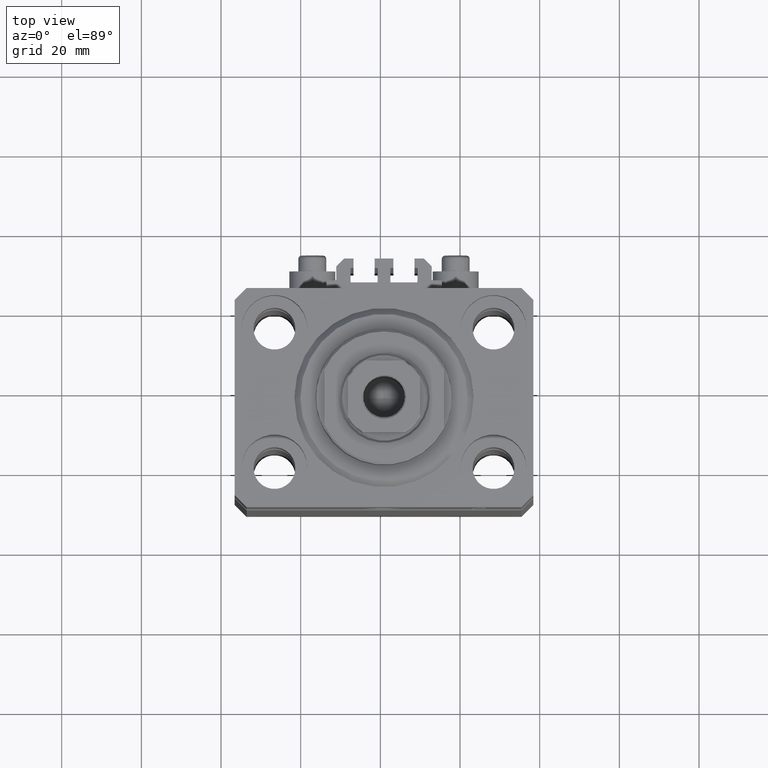
[diagram: clean part render]
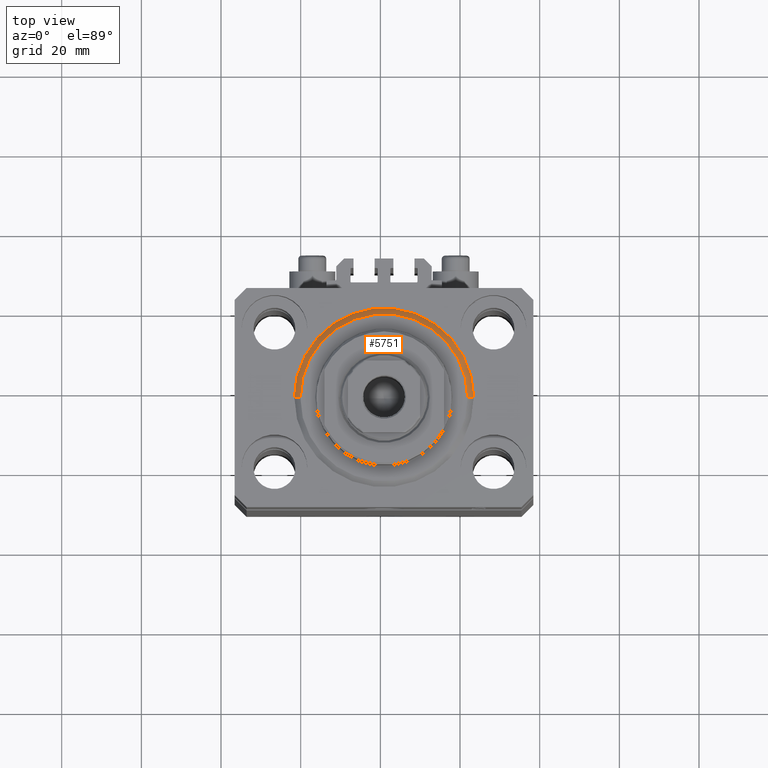
[diagram: same view with one face highlighted and labeled with its STEP entity id]
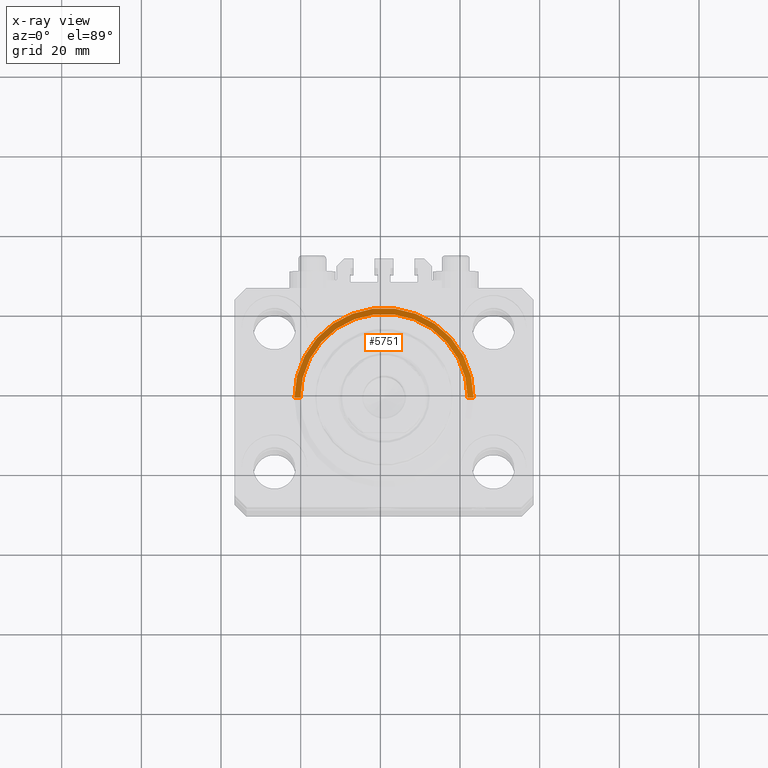
[diagram: x-ray of the same camera — body ghosted, the highlighted face saturated]
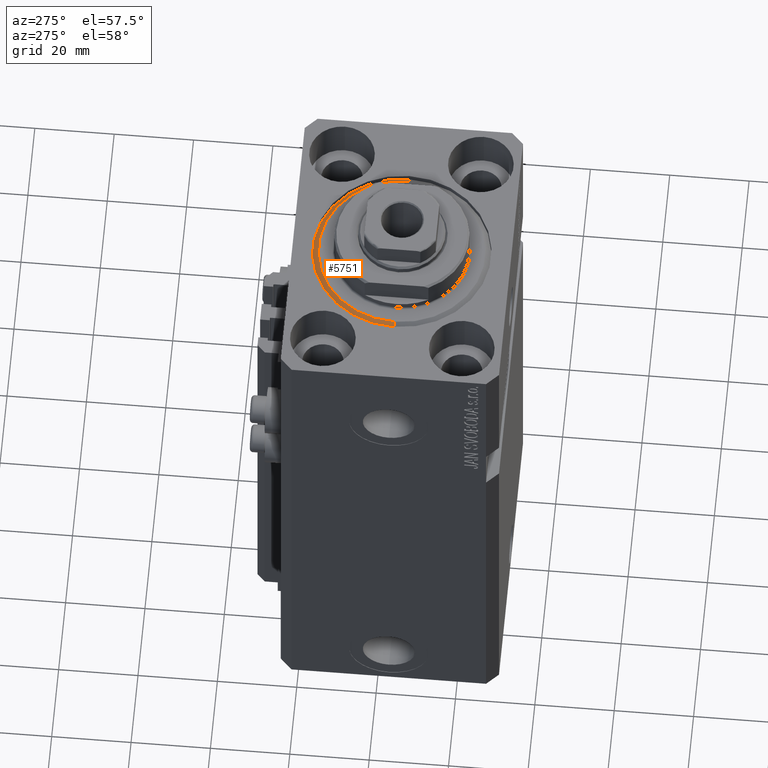
[diagram: same view with one face highlighted and labeled with its STEP entity id]
A machine part, top view. The second image highlights one B-rep face of the part: STEP entity #5751.
The next image is the same camera in x-ray: the body ghosted, the highlighted face saturated — about 0% of this face is hidden behind the body in this view.
A second angle (auxiliary view) of the same face is appended — the face is thin or edge-on in the first view.
In plain terms, the highlighted conical surface has half-angle 45 deg.
Its self-contained STEP definition (entity closure, byte-faithful):
#1240 = CARTESIAN_POINT ( 'NONE',  ( -22.50000000000000355, 2.755455298081545172E-15, 1.500000000000039524 ) ) ;
#2021 = VERTEX_POINT ( 'NONE', #37852 ) ;
#5600 = DIRECTION ( 'NONE',  ( -0.000000000000000000, -0.000000000000000000, 1.000000000000000000 ) ) ;
#5751 = ADVANCED_FACE ( 'NONE', ( #23813 ), #14753, .T. ) ;
#10174 = AXIS2_PLACEMENT_3D ( 'NONE', #38456, #5600, #34835 ) ;
#11089 = EDGE_CURVE ( 'NONE', #11687, #47380, #46181, .T. ) ;
#11687 = VERTEX_POINT ( 'NONE', #43100 ) ;
#12198 = CARTESIAN_POINT ( 'NONE',  ( -22.50000000000000355, 0.000000000000000000, 1.500000000000039524 ) ) ;
#12536 = AXIS2_PLACEMENT_3D ( 'NONE', #30068, #15673, #44206 ) ;
#12825 = DIRECTION ( 'NONE',  ( -0.000000000000000000, -0.000000000000000000, -1.000000000000000000 ) ) ;
#14753 = CONICAL_SURFACE ( 'NONE', #10174, 22.50000000000000355, 0.7853981633974517207 ) ;
#15033 = EDGE_LOOP ( 'NONE', ( #33092, #35826, #44910, #47071 ) ) ;
#15130 = VECTOR ( 'NONE', #42238, 1000.000000000000114 ) ;
#15604 = DIRECTION ( 'NONE',  ( -0.7071067811865500152, 8.659560562354962440E-17, 0.7071067811865451302 ) ) ;
#15673 = DIRECTION ( 'NONE',  ( -0.000000000000000000, -0.000000000000000000, 1.000000000000000000 ) ) ;
#18967 = VECTOR ( 'NONE', #15604, 1000.000000000000114 ) ;
#19203 = LINE ( 'NONE', #1240, #18967 ) ;
#19893 = EDGE_CURVE ( 'NONE', #21279, #2021, #29626, .T. ) ;
#21279 = VERTEX_POINT ( 'NONE', #30214 ) ;
#23813 = FACE_OUTER_BOUND ( 'NONE', #15033, .T. ) ;
#27130 = CARTESIAN_POINT ( 'NONE',  ( 22.50000000000000355, 0.000000000000000000, 1.500000000000039524 ) ) ;
#29626 = CIRCLE ( 'NONE', #31175, 20.99999999999995381 ) ;
#30068 = CARTESIAN_POINT ( 'NONE',  ( 0.000000000000000000, 0.000000000000000000, 1.500000000000039524 ) ) ;
#30214 = CARTESIAN_POINT ( 'NONE',  ( -20.99999999999995381, 2.663606788145490261E-15, 0.000000000000000000 ) ) ;
#30577 = CARTESIAN_POINT ( 'NONE',  ( 0.000000000000000000, 0.000000000000000000, 0.000000000000000000 ) ) ;
#31175 = AXIS2_PLACEMENT_3D ( 'NONE', #30577, #12825, #38961 ) ;
#33092 = ORIENTED_EDGE ( 'NONE', *, *, #19893, .F. ) ;
#34835 = DIRECTION ( 'NONE',  ( 1.000000000000000000, 0.000000000000000000, 0.000000000000000000 ) ) ;
#35826 = ORIENTED_EDGE ( 'NONE', *, *, #42675, .T. ) ;
#37852 = CARTESIAN_POINT ( 'NONE',  ( 20.99999999999995381, 0.000000000000000000, 0.000000000000000000 ) ) ;
#38155 = EDGE_CURVE ( 'NONE', #2021, #11687, #46045, .T. ) ;
#38456 = CARTESIAN_POINT ( 'NONE',  ( 0.000000000000000000, 0.000000000000000000, 1.500000000000039524 ) ) ;
#38961 = DIRECTION ( 'NONE',  ( 1.000000000000000000, 0.000000000000000000, 0.000000000000000000 ) ) ;
#42238 = DIRECTION ( 'NONE',  ( 0.7071067811865500152, 0.000000000000000000, 0.7071067811865451302 ) ) ;
#42675 = EDGE_CURVE ( 'NONE', #21279, #47380, #19203, .T. ) ;
#43100 = CARTESIAN_POINT ( 'NONE',  ( 22.50000000000000355, 2.755455298081544383E-15, 1.500000000000039524 ) ) ;
#44206 = DIRECTION ( 'NONE',  ( 1.000000000000000000, 0.000000000000000000, 0.000000000000000000 ) ) ;
#44910 = ORIENTED_EDGE ( 'NONE', *, *, #11089, .F. ) ;
#46045 = LINE ( 'NONE', #27130, #15130 ) ;
#46181 = CIRCLE ( 'NONE', #12536, 22.50000000000000355 ) ;
#47071 = ORIENTED_EDGE ( 'NONE', *, *, #38155, .F. ) ;
#47380 = VERTEX_POINT ( 'NONE', #12198 ) ;